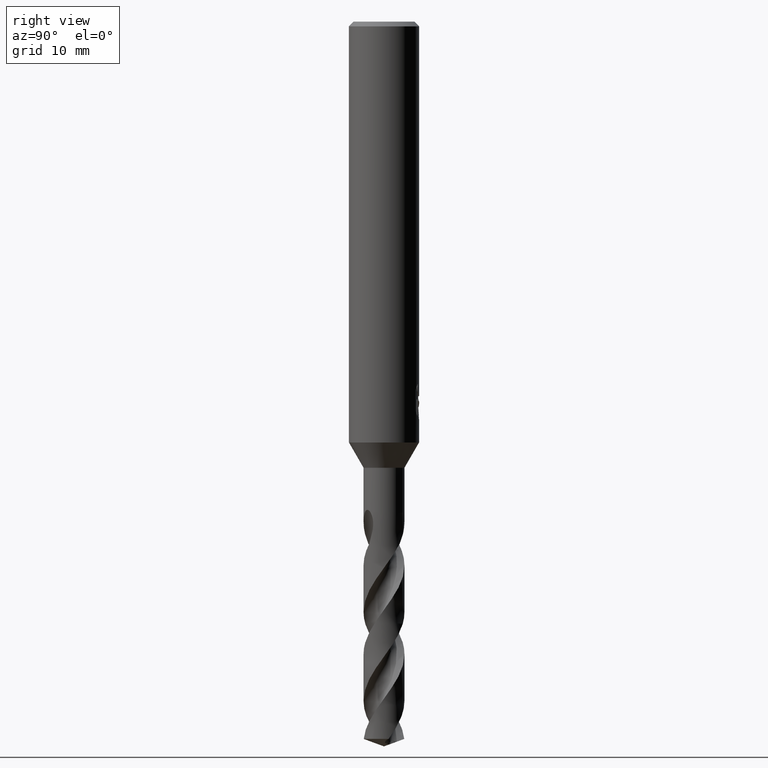
[diagram: clean part render]
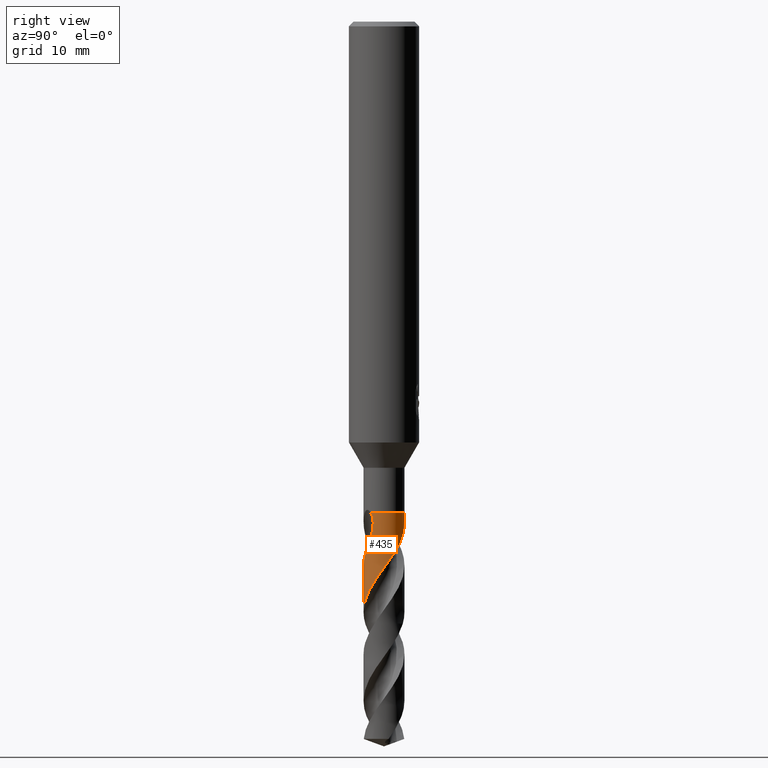
[diagram: same view with one face highlighted and labeled with its STEP entity id]
A machine part, right view. The second image highlights one B-rep face of the part: STEP entity #435.
In plain terms, the highlighted conical surface has half-angle 0 deg.
Its self-contained STEP definition (entity closure, byte-faithful):
#285=EDGE_CURVE('',#293,#657,#778,.T.);
#293=VERTEX_POINT('',#787);
#349=EDGE_CURVE('',#515,#657,#850,.T.);
#353=VERTEX_POINT('',#854);
#357=VERTEX_POINT('',#858);
#359=EDGE_CURVE('',#583,#515,#860,.T.);
#377=VERTEX_POINT('',#880);
#435=ADVANCED_FACE('',(#945),#946,.T.);
#465=EDGE_CURVE('',#353,#377,#976,.T.);
#467=EDGE_CURVE('',#293,#651,#978,.T.);
#515=VERTEX_POINT('',#1030);
#559=EDGE_CURVE('',#377,#583,#1079,.T.);
#583=VERTEX_POINT('',#1108);
#611=EDGE_CURVE('',#651,#357,#1139,.T.);
#651=VERTEX_POINT('',#1180);
#657=VERTEX_POINT('',#1186);
#725=EDGE_CURVE('',#353,#357,#1258,.T.);
#778=LINE('',#1996,#1997);
#787=CARTESIAN_POINT('',(4.32423866805716E-015,-1.74994399281796,-50.5183522565499));
#850=B_SPLINE_CURVE_WITH_KNOTS('',3,(#2343,#2344,#2345,#2346,#2347,#2348,#2349,#2350,#2351,#2352,#2353,#2354,#2355,#2356,#2357,#2358,#2359,#2360,#2361,#2362,#2363,#2364,#2365,#2366,#2367,#2368,#2369,#2370,#2371,#2372,#2373,#2374,#2375,#2376,#2377,#2378,#2379,#2380,#2381,#2382,#2383,#2384,#2385,#2386,#2387,#2388,#2389,#2390,#2391,#2392,#2393,#2394,#2395,#2396,#2397,#2398,#2399,#2400,#2401,#2402,#2403,#2404,#2405,#2406,#2407,#2408,#2409,#2410,#2411,#2412,#2413,#2414,#2415,#2416,#2417,#2418,#2419,#2420,#2421,#2422,#2423,#2424,#2425,#2426,#2427,#2428,#2429,#2430),.UNSPECIFIED.,.F.,.F.,(4,2,2,2,2,2,2,2,2,2,2,2,2,2,2,2,2,2,2,2,2,2,2,2,2,2,2,2,2,2,2,2,2,2,2,2,2,2,2,2,2,2,2,4),(0.0,0.0802687477709614,0.134298288709109,0.188886189371718,0.371913721636104,0.440185286842689,0.48519732116409,0.528450420694526,0.587994968748795,0.654850319514302,0.689710903491107,0.922894809883429,1.07455893074529,1.22501892859062,1.38325239980819,1.80676629320769,2.22038747582014,2.86182981313341,3.72832865262681,4.42308489571376,4.91210970892384,5.88944877732945,6.38232850953601,7.19787845526162,7.69013531416066,8.5538753089084,9.04654453159488,9.87381057028676,10.3660979415676,11.2278302649346,11.7205218901372,12.5467696636752,13.0390595966493,13.9000824059533,14.3927396211918,15.2207793303693,15.7130904992262,16.5742839898542,17.0669261444791,17.888907373676,18.5595217665341,18.8105607681379,19.6954548208589,20.591588560153),.UNSPECIFIED.);
#854=CARTESIAN_POINT('',(-2.17810770136054E-016,1.7499,-42.0));
#858=CARTESIAN_POINT('',(-5.20137370369558E-013,1.74990408404014,-42.7907948206848));
#860=B_SPLINE_CURVE_WITH_KNOTS('',3,(#2468,#2469,#2470,#2471),.UNSPECIFIED.,.F.,.F.,(4,4),(0.0,1.00561664471523),.UNSPECIFIED.);
#880=CARTESIAN_POINT('',(1.32427233573329,-1.14387621306307,-42.0));
#945=FACE_OUTER_BOUND('',#2736,.T.);
#946=CONICAL_SURFACE('',#2737,1.74995,5.16447508038097E-006);
#976=CIRCLE('',#2816,1.7499);
#978=B_SPLINE_CURVE_WITH_KNOTS('',3,(#2819,#2820,#2821,#2822,#2823,#2824,#2825,#2826,#2827,#2828,#2829,#2830,#2831,#2832,#2833,#2834,#2835,#2836,#2837,#2838,#2839,#2840,#2841,#2842,#2843,#2844,#2845,#2846,#2847,#2848,#2849,#2850,#2851,#2852,#2853,#2854,#2855,#2856,#2857,#2858,#2859,#2860,#2861,#2862,#2863,#2864,#2865,#2866,#2867,#2868,#2869,#2870,#2871,#2872,#2873,#2874,#2875,#2876,#2877,#2878,#2879,#2880,#2881,#2882,#2883,#2884,#2885,#2886,#2887,#2888,#2889,#2890,#2891,#2892,#2893,#2894,#2895,#2896,#2897,#2898,#2899,#2900,#2901,#2902,#2903,#2904),.UNSPECIFIED.,.F.,.F.,(4,2,2,2,2,2,2,2,2,2,2,2,2,2,2,2,2,2,2,2,2,2,2,2,2,2,2,2,2,2,2,2,2,2,2,2,2,2,2,2,2,2,4),(0.0,0.974043603745516,1.46729353331834,1.76439108332413,1.96733051675974,3.21720046240034,3.26681085383994,3.99778926377135,4.29223800571401,4.78287161761425,5.44931738732369,5.74865798885266,6.20238803819658,6.82915637049189,7.49330861572469,8.10202328078798,8.45425668812374,8.90065681122232,9.53005186130906,10.243743812598,10.8580122124303,11.9439378455943,12.6379561878717,12.7458551064634,13.4192767688239,13.7572930642747,14.4262161348574,15.1010790787376,15.7547320881622,16.4147496994472,17.0027110069048,18.6824305545575,18.9086185383265,19.2382380070086,19.6038826295242,19.8481728878445,20.151469172512,20.1797385471404,20.2188736800682,20.2526708029194,20.2943786016003,20.376954835032,20.5351807691826),.UNSPECIFIED.);
#1030=CARTESIAN_POINT('',(1.21632431193032,-1.25807515444766,-44.651));
#1079=B_SPLINE_CURVE_WITH_KNOTS('',3,(#3387,#3388,#3389,#3390,#3391,#3392,#3393,#3394),.UNSPECIFIED.,.F.,.F.,(4,2,2,4),(0.0,0.325512486326322,0.78158386711441,1.22324609436425),.UNSPECIFIED.);
#1108=CARTESIAN_POINT('',(1.42378643058529,-1.01735579235357,-43.6928743729365));
#1139=B_SPLINE_CURVE_WITH_KNOTS('',3,(#4441,#4442,#4443,#4444,#4445,#4446,#4447,#4448,#4449,#4450,#4451,#4452,#4453,#4454),.UNSPECIFIED.,.F.,.F.,(4,2,2,2,2,2,4),(0.0,0.857414307530127,1.32557299273248,1.74959593571929,2.2421906921313,2.83389732313495,3.14274286219021),.UNSPECIFIED.);
#1180=CARTESIAN_POINT('',(1.11510249506521,1.34860830174318,-44.651));
#1186=CARTESIAN_POINT('',(1.26781837017926E-013,-1.74992331211858,-46.5139376634873));
#1258=LINE('',#5113,#5114);
#1996=CARTESIAN_POINT('',(2.10783084606471E-016,-1.74995,-51.6815260450171));
#1997=VECTOR('',#5178,1.0);
#2343=CARTESIAN_POINT('',(1.21632431193032,-1.25807515444766,-44.651));
#2344=CARTESIAN_POINT('',(1.20555638069342,-1.26848589730082,-44.6731712643849));
#2345=CARTESIAN_POINT('',(1.19462268396244,-1.27879001083426,-44.6953083224348));
#2346=CARTESIAN_POINT('',(1.17599212794565,-1.29589561609945,-44.7322914582129));
#2347=CARTESIAN_POINT('',(1.1684160481856,-1.30273126264401,-44.7471350891516));
#2348=CARTESIAN_POINT('',(1.15299015159047,-1.31640466337958,-44.7769421630135));
#2349=CARTESIAN_POINT('',(1.14515209484828,-1.32322950492649,-44.7918786693638));
#2350=CARTESIAN_POINT('',(1.11058445543426,-1.35278642074761,-44.8568194002301));
#2351=CARTESIAN_POINT('',(1.0831663440203,-1.37486104334804,-44.9059206843411));
#2352=CARTESIAN_POINT('',(1.04381692233533,-1.40457446652719,-44.9734866745909));
#2353=CARTESIAN_POINT('',(1.03300374234684,-1.41254710466604,-44.99177618419));
#2354=CARTESIAN_POINT('',(1.01483498055567,-1.425620459928,-45.022109219688));
#2355=CARTESIAN_POINT('',(1.00756584524597,-1.43076746221754,-45.0341423946142));
#2356=CARTESIAN_POINT('',(0.993209446417624,-1.44076847027158,-45.0577319758479));
#2357=CARTESIAN_POINT('',(0.986132346454521,-1.44562175714548,-45.0692785104299));
#2358=CARTESIAN_POINT('',(0.969211531575976,-1.4570431776112,-45.0967212242113));
#2359=CARTESIAN_POINT('',(0.959341831813287,-1.46356052623572,-45.1125979644636));
#2360=CARTESIAN_POINT('',(0.938250829604439,-1.47718266160343,-45.1463289105554));
#2361=CARTESIAN_POINT('',(0.927030386369765,-1.4842496863505,-45.1641577843351));
#2362=CARTESIAN_POINT('',(0.909866576316254,-1.49479033973453,-45.1913414770396));
#2363=CARTESIAN_POINT('',(0.903986721042352,-1.49835372710069,-45.2006404721841));
#2364=CARTESIAN_POINT('',(0.858254724920307,-1.5256987535819,-45.272947037505));
#2365=CARTESIAN_POINT('',(0.817804284920025,-1.5477380192619,-45.3366106314956));
#2366=CARTESIAN_POINT('',(0.750253215904771,-1.58120680944678,-45.4414205003887));
#2367=CARTESIAN_POINT('',(0.72332265591002,-1.59370548392133,-45.4828292991088));
#2368=CARTESIAN_POINT('',(0.66910944240892,-1.61721147701627,-45.5652176141333));
#2369=CARTESIAN_POINT('',(0.641780998407383,-1.62825164458225,-45.6062748787675));
#2370=CARTESIAN_POINT('',(0.58507998481501,-1.6495034197874,-45.6903509270785));
#2371=CARTESIAN_POINT('',(0.55582291159184,-1.65959166116729,-45.7330834693402));
#2372=CARTESIAN_POINT('',(0.446837169971501,-1.69395330263707,-45.8906317016598));
#2373=CARTESIAN_POINT('',(0.365820401112665,-1.71327651964155,-46.0047952072277));
#2374=CARTESIAN_POINT('',(0.203582962859954,-1.73993667435974,-46.2315377833005));
#2375=CARTESIAN_POINT('',(0.122754147654468,-1.74748705521826,-46.3438753144114));
#2376=CARTESIAN_POINT('',(-0.0836448261565941,-1.75242470633812,-46.6298554640286));
#2377=CARTESIAN_POINT('',(-0.209144693710757,-1.74192086672487,-46.8026288125479));
#2378=CARTESIAN_POINT('',(-0.499195218521707,-1.68578401538513,-47.2110210794231));
#2379=CARTESIAN_POINT('',(-0.660389604244204,-1.62942190836503,-47.4445693482068));
#2380=CARTESIAN_POINT('',(-0.931731194219694,-1.48751487649863,-47.8671869943786));
#2381=CARTESIAN_POINT('',(-1.04456476260879,-1.41054339796072,-48.0548480720241));
#2382=CARTESIAN_POINT('',(-1.21951279761492,-1.25865562551193,-48.3756229038649));
#2383=CARTESIAN_POINT('',(-1.28657662762969,-1.19003364448395,-48.5078908902459));
#2384=CARTESIAN_POINT('',(-1.46994935059897,-0.968626727265488,-48.9048818320346));
#2385=CARTESIAN_POINT('',(-1.56704851665706,-0.802044453384388,-49.1676461122185));
#2386=CARTESIAN_POINT('',(-1.66958975884766,-0.532986400604855,-49.5659280274121));
#2387=CARTESIAN_POINT('',(-1.69646680034296,-0.440037244927324,-49.6991355168865));
#2388=CARTESIAN_POINT('',(-1.74709793099215,-0.188481471636877,-50.0533232404585));
#2389=CARTESIAN_POINT('',(-1.75698793200504,-0.0282081343645794,-50.2733303129486));
#2390=CARTESIAN_POINT('',(-1.73781348573395,0.227159390856958,-50.6276377477028));
#2391=CARTESIAN_POINT('',(-1.72266178112102,0.322589658471984,-50.760693420946));
#2392=CARTESIAN_POINT('',(-1.65939359354237,0.580878947354437,-51.1277544434749));
#2393=CARTESIAN_POINT('',(-1.59544226325799,0.738575447502787,-51.360586872248));
#2394=CARTESIAN_POINT('',(-1.46118140252024,0.967772210599989,-51.7280491599637));
#2395=CARTESIAN_POINT('',(-1.40558035200799,1.04690384815982,-51.8612033927705));
#2396=CARTESIAN_POINT('',(-1.23974426843625,1.24566884486086,-52.2184991046075));
#2397=CARTESIAN_POINT('',(-1.11905787262383,1.35509789869707,-52.4416050194539));
#2398=CARTESIAN_POINT('',(-0.905503007106952,1.50056732070627,-52.7990917375619));
#2399=CARTESIAN_POINT('',(-0.821426171028001,1.54820125176332,-52.9321551166846));
#2400=CARTESIAN_POINT('',(-0.580361504381174,1.65954628698141,-53.2986831212346));
#2401=CARTESIAN_POINT('',(-0.417582983128682,1.70776468910501,-53.5309918703715));
#2402=CARTESIAN_POINT('',(-0.155080567001213,1.74574457682034,-53.8979179029672));
#2403=CARTESIAN_POINT('',(-0.0585443243662741,1.75164964374639,-54.0310781419852));
#2404=CARTESIAN_POINT('',(0.200061131405061,1.74602601973209,-54.3881042222508));
#2405=CARTESIAN_POINT('',(0.36067907329898,1.72001943831668,-54.6109368385727));
#2406=CARTESIAN_POINT('',(0.607429848209899,1.64399103939595,-54.9681462251209));
#2407=CARTESIAN_POINT('',(0.697120447411769,1.60802074066132,-55.1012093718931));
#2408=CARTESIAN_POINT('',(0.934440209106128,1.48920374657466,-55.4675440542185));
#2409=CARTESIAN_POINT('',(1.07359679801021,1.39219909728927,-55.6996609095527));
#2410=CARTESIAN_POINT('',(1.26702731331622,1.21093100239552,-56.0663848494729));
#2411=CARTESIAN_POINT('',(1.33189862642584,1.13920496924329,-56.1995361400358));
#2412=CARTESIAN_POINT('',(1.48914987648739,0.933390321071715,-56.5570374266159));
#2413=CARTESIAN_POINT('',(1.56923112363944,0.791342366600799,-56.7803468975541));
#2414=CARTESIAN_POINT('',(1.66385607921637,0.550727245312144,-57.1380488099472));
#2415=CARTESIAN_POINT('',(1.69168997190941,0.458183954916684,-57.2711183119059));
#2416=CARTESIAN_POINT('',(1.7468647713496,0.198544317320187,-57.6375075274634));
#2417=CARTESIAN_POINT('',(1.75784674905741,0.0292347515577175,-57.8696795209328));
#2418=CARTESIAN_POINT('',(1.73680740765412,-0.235055530499478,-58.2364421219624));
#2419=CARTESIAN_POINT('',(1.72120646782954,-0.330498993694314,-58.369586084283));
#2420=CARTESIAN_POINT('',(1.65870389512197,-0.580640119073859,-58.7254354846808));
#2421=CARTESIAN_POINT('',(1.59822657443981,-0.730775707407189,-58.9470984716665));
#2422=CARTESIAN_POINT('',(1.45286379280675,-0.984323697489191,-59.351481982257));
#2423=CARTESIAN_POINT('',(1.37489164598934,-1.09061223163073,-59.5323629558548));
#2424=CARTESIAN_POINT('',(1.25227400641482,-1.22339888602999,-59.7818384135547));
#2425=CARTESIAN_POINT('',(1.2173837320896,-1.25812117364628,-59.8497231150188));
#2426=CARTESIAN_POINT('',(1.05315123637543,-1.4083365719326,-60.1574083970704));
#2427=CARTESIAN_POINT('',(0.90840641520507,-1.50579938221484,-60.3962896992936));
#2428=CARTESIAN_POINT('',(0.592792792231872,-1.65590163724761,-60.8784808810239));
#2429=CARTESIAN_POINT('',(0.423726766554707,-1.70695412311092,-61.1200645073421));
#2430=CARTESIAN_POINT('',(0.25019658566793,-1.73202242148308,-61.3630520900342));
#2468=CARTESIAN_POINT('',(1.42378643063791,-1.01735579227993,-43.6928743729655));
#2469=CARTESIAN_POINT('',(1.36737387296232,-1.09630785056086,-44.0137278526092));
#2470=CARTESIAN_POINT('',(1.29938274260451,-1.17777086536824,-44.3364901716149));
#2471=CARTESIAN_POINT('',(1.21632431193032,-1.25807515444766,-44.651));
#2736=EDGE_LOOP('',(#5378,#5379,#5380,#5381,#5382,#5383,#5384,#5385));
#2737=AXIS2_PLACEMENT_3D('',#5386,#5387,#5388);
#2816=AXIS2_PLACEMENT_3D('',#5393,#5394,#5395);
#2819=CARTESIAN_POINT('',(1.70445062211904,0.396671245186766,-61.3630520900342));
#2820=CARTESIAN_POINT('',(1.66111375343563,0.582878795991717,-61.1006277270643));
#2821=CARTESIAN_POINT('',(1.58775279467385,0.760070525583836,-60.8353089726521));
#2822=CARTESIAN_POINT('',(1.43683977407769,1.00361918979296,-60.4394156216837));
#2823=CARTESIAN_POINT('',(1.37939731816996,1.08122741332449,-60.3071144713288));
#2824=CARTESIAN_POINT('',(1.27747170770906,1.19746411011267,-60.0941099033158));
#2825=CARTESIAN_POINT('',(1.2370785707928,1.23913814808578,-60.0141326581067));
#2826=CARTESIAN_POINT('',(1.16588837190418,1.30565733589649,-59.8790937403446));
#2827=CARTESIAN_POINT('',(1.13616281535945,1.33160013549033,-59.8241531910214));
#2828=CARTESIAN_POINT('',(0.917503542742688,1.50981701071042,-59.4323598420131));
#2829=CARTESIAN_POINT('',(0.699939590836492,1.6220712371892,-59.1059421767772));
#2830=CARTESIAN_POINT('',(0.457430316550718,1.68917218032921,-58.7557105566524));
#2831=CARTESIAN_POINT('',(0.448169672333806,1.69165274361652,-58.742350986773));
#2832=CARTESIAN_POINT('',(0.301731563413887,1.72958775933734,-58.5317923575118));
#2833=CARTESIAN_POINT('',(0.160374240969461,1.74844824294004,-58.3368816761276));
#2834=CARTESIAN_POINT('',(-0.0397114107212767,1.75047554570916,-58.0615061844922));
#2835=CARTESIAN_POINT('',(-0.0971000619172283,1.74822712155988,-57.9825471787972));
#2836=CARTESIAN_POINT('',(-0.249383096063619,1.73475390406472,-57.7714867007185));
#2837=CARTESIAN_POINT('',(-0.343454401134999,1.71858224390627,-57.6387227046301));
#2838=CARTESIAN_POINT('',(-0.560782430700384,1.66272485666103,-57.3277364764948));
#2839=CARTESIAN_POINT('',(-0.682223205146323,1.6167339927672,-57.1503787764035));
#2840=CARTESIAN_POINT('',(-0.849571903749761,1.53102671754663,-56.8914786261135));
#2841=CARTESIAN_POINT('',(-0.899991839877137,1.50193376399665,-56.8113280113028));
#2842=CARTESIAN_POINT('',(-1.02275526102285,1.42272080324665,-56.6090824111837));
#2843=CARTESIAN_POINT('',(-1.09291319908538,1.36956643417475,-56.4865038305781));
#2844=CARTESIAN_POINT('',(-1.25009100686924,1.2306444777674,-56.196236190568));
#2845=CARTESIAN_POINT('',(-1.33272314641203,1.14067541649712,-56.0293362357362));
#2846=CARTESIAN_POINT('',(-1.48245864640476,0.938845270061716,-55.6831902092667));
#2847=CARTESIAN_POINT('',(-1.54757235929656,0.827011149522708,-55.5039983952524));
#2848=CARTESIAN_POINT('',(-1.64747906914125,0.60173851428813,-55.1625694686745));
#2849=CARTESIAN_POINT('',(-1.68434023116717,0.48926627574313,-55.0006458954861));
#2850=CARTESIAN_POINT('',(-1.72422276281697,0.306795424210424,-54.7435315090941));
#2851=CARTESIAN_POINT('',(-1.73487631064609,0.239237533182169,-54.6494628138491));
#2852=CARTESIAN_POINT('',(-1.7500181267817,0.0853392422058732,-54.4353502837866));
#2853=CARTESIAN_POINT('',(-1.75210100653162,-0.00107227030882243,-54.3149763188469));
#2854=CARTESIAN_POINT('',(-1.74167475010098,-0.209329773673887,-54.026446855104));
#2855=CARTESIAN_POINT('',(-1.72284662887104,-0.330344266472516,-53.8591289105452));
#2856=CARTESIAN_POINT('',(-1.65593178564536,-0.582655896060815,-53.4995842491892));
#2857=CARTESIAN_POINT('',(-1.60463739893164,-0.711739973045769,-53.3072289639327));
#2858=CARTESIAN_POINT('',(-1.48225958785939,-0.937757519943169,-52.9515276307979));
#2859=CARTESIAN_POINT('',(-1.41507297401583,-1.03640346768522,-52.7883758271165));
#2860=CARTESIAN_POINT('',(-1.20240705204541,-1.28879433872343,-52.3338696907037));
#2861=CARTESIAN_POINT('',(-1.03866864049816,-1.4240569713268,-52.0421003760237));
#2862=CARTESIAN_POINT('',(-0.737152866704635,-1.59282136934979,-51.5663391862274));
#2863=CARTESIAN_POINT('',(-0.612761668198803,-1.64461578884811,-51.3825367485944));
#2864=CARTESIAN_POINT('',(-0.46412755054388,-1.68740464322907,-51.1674712080571));
#2865=CARTESIAN_POINT('',(-0.444069058577488,-1.69279394910898,-51.1385219814925));
#2866=CARTESIAN_POINT('',(-0.297792021071381,-1.72931119589532,-50.9288635187979));
#2867=CARTESIAN_POINT('',(-0.168237702558041,-1.74674214283987,-50.7499295448648));
#2868=CARTESIAN_POINT('',(0.0281434550331753,-1.7509484324924,-50.4796060920438));
#2869=CARTESIAN_POINT('',(0.0937255266915751,-1.74865852571378,-50.3894450729513));
#2870=CARTESIAN_POINT('',(0.28802340758148,-1.73093563523919,-50.1200035044059));
#2871=CARTESIAN_POINT('',(0.415242880349005,-1.70489719371554,-49.9396748773872));
#2872=CARTESIAN_POINT('',(0.663039350482678,-1.62473789594746,-49.5800880072757));
#2873=CARTESIAN_POINT('',(0.782541703239305,-1.57067058661592,-49.4012445056599));
#2874=CARTESIAN_POINT('',(1.00371832959248,-1.43904937962742,-49.0458034145992));
#2875=CARTESIAN_POINT('',(1.10506082764541,-1.36277562126206,-48.8696036862986));
#2876=CARTESIAN_POINT('',(1.29068702199907,-1.1885922007965,-48.5181324014442));
#2877=CARTESIAN_POINT('',(1.37406875977103,-1.09112744220459,-48.3432509451989));
#2878=CARTESIAN_POINT('',(1.5102557859521,-0.89127349771003,-48.0095085470695));
#2879=CARTESIAN_POINT('',(1.56490286518746,-0.791339379442095,-47.8510735445792));
#2880=CARTESIAN_POINT('',(1.73674919127346,-0.388709344592217,-47.2445792046914));
#2881=CARTESIAN_POINT('',(1.77843472854853,-0.0612216661643396,-46.8100289076692));
#2882=CARTESIAN_POINT('',(1.72434039218624,0.301280513327416,-46.3001707751267));
#2883=CARTESIAN_POINT('',(1.71634452426745,0.343921872167593,-46.239486864509));
#2884=CARTESIAN_POINT('',(1.69273109039206,0.448227549775436,-46.0908294514217));
#2885=CARTESIAN_POINT('',(1.67528687986777,0.509675107873629,-46.0028602644596));
#2886=CARTESIAN_POINT('',(1.6310841474923,0.637862585687191,-45.8181730928832));
#2887=CARTESIAN_POINT('',(1.60465840116886,0.701491312862852,-45.7269515047296));
#2888=CARTESIAN_POINT('',(1.55420514691762,0.805483728752306,-45.5700227988301));
#2889=CARTESIAN_POINT('',(1.53265774441084,0.845685180469283,-45.5070741073848));
#2890=CARTESIAN_POINT('',(1.48187185568404,0.932397204471638,-45.3639239434804));
#2891=CARTESIAN_POINT('',(1.45238110249454,0.977499135896794,-45.284184341318));
#2892=CARTESIAN_POINT('',(1.41924038897341,1.02371284136555,-45.1947509797476));
#2893=CARTESIAN_POINT('',(1.41518842395563,1.02934171153325,-45.1837623069212));
#2894=CARTESIAN_POINT('',(1.40140800341192,1.04806714060262,-45.1479279853233));
#2895=CARTESIAN_POINT('',(1.3931417541667,1.05903684440975,-45.1273175201372));
#2896=CARTESIAN_POINT('',(1.37716823392561,1.07970367003265,-45.089194365686));
#2897=CARTESIAN_POINT('',(1.3695527208986,1.0893516756239,-45.0716767293017));
#2898=CARTESIAN_POINT('',(1.35201596561273,1.11107854513732,-45.0328292403263));
#2899=CARTESIAN_POINT('',(1.34199119669697,1.12317441763336,-45.0116087828324));
#2900=CARTESIAN_POINT('',(1.31101459670804,1.15950432557998,-44.9489918242306));
#2901=CARTESIAN_POINT('',(1.28908950114928,1.18389412316861,-44.9084188480899));
#2902=CARTESIAN_POINT('',(1.22066440547017,1.25555465878816,-44.7924710095003));
#2903=CARTESIAN_POINT('',(1.17071462837619,1.30262563852666,-44.720407341835));
#2904=CARTESIAN_POINT('',(1.11510249506521,1.34860830174318,-44.651));
#3387=CARTESIAN_POINT('',(1.32427233573329,-1.14387621306306,-42.0));
#3388=CARTESIAN_POINT('',(1.36749665228105,-1.09383584285371,-42.086027745543));
#3389=CARTESIAN_POINT('',(1.401649181383,-1.04857105999185,-42.1930173593395));
#3390=CARTESIAN_POINT('',(1.46327790822186,-0.961686152262089,-42.4881161131084));
#3391=CARTESIAN_POINT('',(1.48392298477478,-0.927441709235808,-42.6968863276956));
#3392=CARTESIAN_POINT('',(1.48766583379121,-0.921430092630894,-43.156356414813));
#3393=CARTESIAN_POINT('',(1.47321130457151,-0.948183329909043,-43.4117718924125));
#3394=CARTESIAN_POINT('',(1.42378643058529,-1.01735579235357,-43.6928743729365));
#4441=CARTESIAN_POINT('',(1.11510249506522,1.34860830174317,-44.651));
#4442=CARTESIAN_POINT('',(0.999671268245252,1.44405147011063,-44.4075855395196));
#4443=CARTESIAN_POINT('',(0.866948618613191,1.52889596964731,-44.1806449830738));
#4444=CARTESIAN_POINT('',(0.635517913908068,1.63288982501778,-43.8015310820095));
#4445=CARTESIAN_POINT('',(0.552238524589381,1.66280476369218,-43.668147973569));
#4446=CARTESIAN_POINT('',(0.391021163224577,1.70751287272812,-43.4099575219005));
#4447=CARTESIAN_POINT('',(0.313802853890045,1.72330801873221,-43.2863530981902));
#4448=CARTESIAN_POINT('',(0.146660043955368,1.74610354328926,-43.0199590811954));
#4449=CARTESIAN_POINT('',(0.0553389861604363,1.75145520422366,-42.8750840139458));
#4450=CARTESIAN_POINT('',(-0.14746047946083,1.74718874901052,-42.5651527672133));
#4451=CARTESIAN_POINT('',(-0.267699121784132,1.73399454509561,-42.3888013619289));
#4452=CARTESIAN_POINT('',(-0.456741304410221,1.69055178215349,-42.1517156840636));
#4453=CARTESIAN_POINT('',(-0.526740643238535,1.67053840280491,-42.0709594717701));
#4454=CARTESIAN_POINT('',(-0.599530194315323,1.64399317398347,-42.0));
#5113=CARTESIAN_POINT('',(-2.17816893167823E-016,1.74995,-51.6815260450171));
#5114=VECTOR('',#5687,1.0);
#5178=DIRECTION('',(-6.32444899756375E-022,5.16447508035801E-006,0.999999999986664));
#5378=ORIENTED_EDGE('',*,*,#725,.F.);
#5379=ORIENTED_EDGE('',*,*,#465,.T.);
#5380=ORIENTED_EDGE('',*,*,#559,.T.);
#5381=ORIENTED_EDGE('',*,*,#359,.T.);
#5382=ORIENTED_EDGE('',*,*,#349,.T.);
#5383=ORIENTED_EDGE('',*,*,#285,.F.);
#5384=ORIENTED_EDGE('',*,*,#467,.T.);
#5385=ORIENTED_EDGE('',*,*,#611,.T.);
#5386=CARTESIAN_POINT('',(0.0,0.0,-51.6815260450171));
#5387=DIRECTION('',(0.0,-0.0,-1.0));
#5388=DIRECTION('',(0.0,1.0,0.0));
#5393=CARTESIAN_POINT('',(0.0,0.0,-42.0));
#5394=DIRECTION('',(0.0,0.0,-1.0));
#5395=DIRECTION('',(0.0,1.0,0.0));
#5687=DIRECTION('',(-6.32444899756375E-022,5.16447508035801E-006,-0.999999999986664));